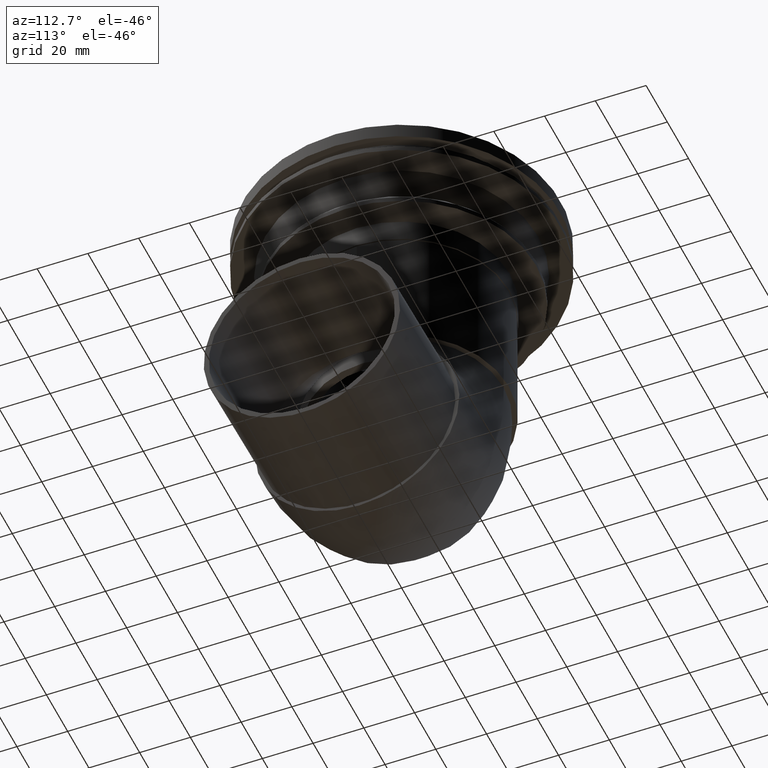
[diagram: clean part render]
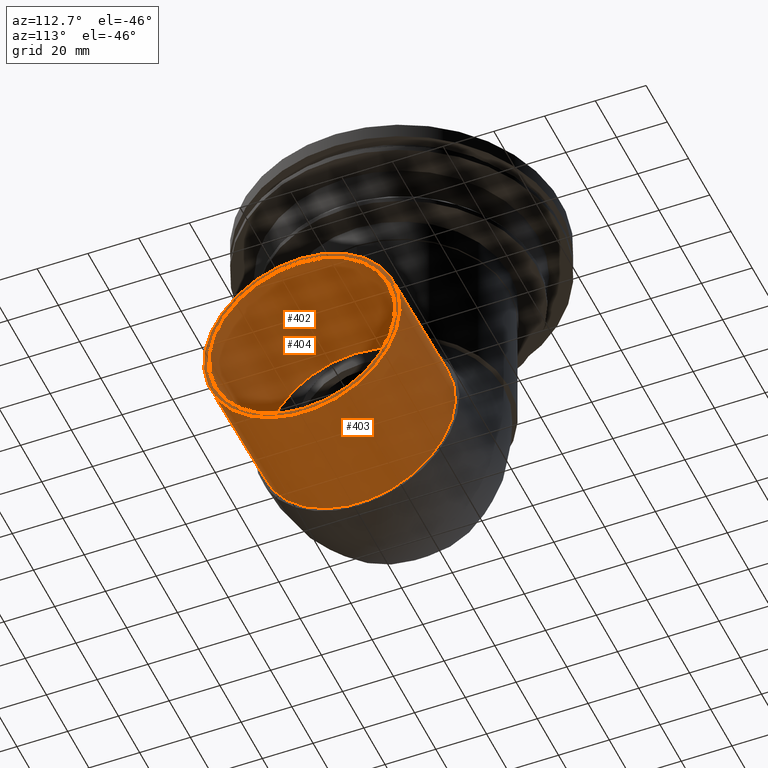
[diagram: same view with one multi-face feature highlighted, each face labeled with its STEP entity id]
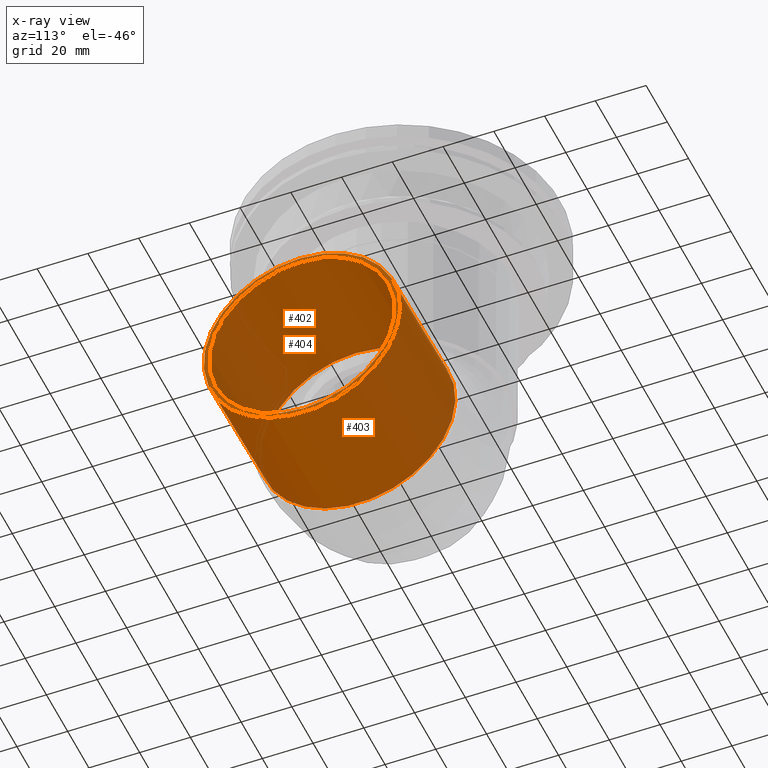
[diagram: x-ray of the same camera — body ghosted, the whole feature saturated]
A machine part, auxiliary view. The highlighted faces form ONE feature: a stepped (counterbored) hole: 2 coaxial cylindrical walls of radii 36.7 -> 38.7 mm joined by 1 annular planar shoulder face(s). The faces share edges in the B-rep.
The next image is the same camera in x-ray: the body ghosted and the whole hole feature saturated, so the bore chain is visible through the body.
Their STEP definitions:
[1] entity #403 (Cylinder):
#33=CYLINDRICAL_SURFACE('',#485,38.7);
#111=ORIENTED_EDGE('',*,*,#149,.T.);
#112=ORIENTED_EDGE('',*,*,#146,.F.);
#146=EDGE_CURVE('',#181,#181,#216,.T.);
#149=EDGE_CURVE('',#184,#184,#219,.T.);
#181=VERTEX_POINT('',#725);
#184=VERTEX_POINT('',#734);
#216=CIRCLE('',#480,38.7);
#219=CIRCLE('',#486,38.7);
#286=EDGE_LOOP('',(#111));
#287=EDGE_LOOP('',(#112));
#356=FACE_BOUND('',#286,.T.);
#357=FACE_BOUND('',#287,.T.);
#403=ADVANCED_FACE('',(#356,#357),#33,.T.);
#480=AXIS2_PLACEMENT_3D('',#724,#614,#615);
#485=AXIS2_PLACEMENT_3D('',#732,#624,#625);
#486=AXIS2_PLACEMENT_3D('',#733,#626,#627);
#614=DIRECTION('',(-0.999048221581858,0.,0.0436193873653364));
#615=DIRECTION('',(0.0436193873653364,0.,0.999048221581858));
#624=DIRECTION('',(-0.999048221581858,0.,0.0436193873653364));
#625=DIRECTION('',(0.0436193873653364,0.,0.999048221581858));
#626=DIRECTION('',(-0.999048221581858,0.,0.0436193873653364));
#627=DIRECTION('',(0.0436193873653364,0.,0.999048221581858));
#724=CARTESIAN_POINT('',(41.8238550927215,0.,-133.115971368612));
#725=CARTESIAN_POINT('',(43.51192538376,0.,-94.4528051933938));
#732=CARTESIAN_POINT('',(41.8238550927215,0.,-133.115971368612));
#733=CARTESIAN_POINT('',(94.0341151525894,0.,-135.395520552324));
#734=CARTESIAN_POINT('',(95.7221854436279,0.,-96.7323543771062));
[2] entity #402 (Cylinder):
#32=CYLINDRICAL_SURFACE('',#483,36.7);
#109=ORIENTED_EDGE('',*,*,#147,.T.);
#110=ORIENTED_EDGE('',*,*,#148,.F.);
#147=EDGE_CURVE('',#182,#182,#217,.T.);
#148=EDGE_CURVE('',#183,#183,#218,.T.);
#182=VERTEX_POINT('',#728);
#183=VERTEX_POINT('',#731);
#217=CIRCLE('',#482,36.7);
#218=CIRCLE('',#484,36.7);
#284=EDGE_LOOP('',(#109));
#285=EDGE_LOOP('',(#110));
#354=FACE_BOUND('',#284,.T.);
#355=FACE_BOUND('',#285,.T.);
#402=ADVANCED_FACE('',(#354,#355),#32,.F.);
#482=AXIS2_PLACEMENT_3D('',#727,#618,#619);
#483=AXIS2_PLACEMENT_3D('',#729,#620,#621);
#484=AXIS2_PLACEMENT_3D('',#730,#622,#623);
#618=DIRECTION('',(-0.999048221581858,0.,0.0436193873653364));
#619=DIRECTION('',(0.0436193873653364,0.,0.999048221581858));
#620=DIRECTION('',(-0.999048221581858,0.,0.0436193873653364));
#621=DIRECTION('',(0.0436193873653364,0.,0.999048221581858));
#622=DIRECTION('',(-0.999048221581858,0.,0.0436193873653364));
#623=DIRECTION('',(0.0436193873653364,0.,0.999048221581858));
#727=CARTESIAN_POINT('',(41.8238550927215,0.,-133.115971368612));
#728=CARTESIAN_POINT('',(43.4246866090293,0.,-96.4509016365575));
#729=CARTESIAN_POINT('',(41.8238550927215,0.,-133.115971368612));
#730=CARTESIAN_POINT('',(94.0341151525894,0.,-135.395520552324));
#731=CARTESIAN_POINT('',(95.6349466688972,0.,-98.73045082027));
[3] entity #404 (Plane):
#44=PLANE('',#487);
#113=ORIENTED_EDGE('',*,*,#148,.T.);
#114=ORIENTED_EDGE('',*,*,#149,.F.);
#148=EDGE_CURVE('',#183,#183,#218,.T.);
#149=EDGE_CURVE('',#184,#184,#219,.T.);
#183=VERTEX_POINT('',#731);
#184=VERTEX_POINT('',#734);
#218=CIRCLE('',#484,36.7);
#219=CIRCLE('',#486,38.7);
#288=EDGE_LOOP('',(#113));
#289=EDGE_LOOP('',(#114));
#358=FACE_BOUND('',#288,.T.);
#359=FACE_BOUND('',#289,.T.);
#404=ADVANCED_FACE('',(#358,#359),#44,.T.);
#484=AXIS2_PLACEMENT_3D('',#730,#622,#623);
#486=AXIS2_PLACEMENT_3D('',#733,#626,#627);
#487=AXIS2_PLACEMENT_3D('',#735,#628,#629);
#622=DIRECTION('',(-0.999048221581858,0.,0.0436193873653364));
#623=DIRECTION('',(0.0436193873653364,0.,0.999048221581858));
#626=DIRECTION('',(-0.999048221581858,0.,0.0436193873653364));
#627=DIRECTION('',(0.0436193873653364,0.,0.999048221581858));
#628=DIRECTION('',(0.999048221581858,0.,-0.0436193873653364));
#629=DIRECTION('',(-0.0436193873653364,0.,-0.999048221581858));
#730=CARTESIAN_POINT('',(94.0341151525894,0.,-135.395520552324));
#731=CARTESIAN_POINT('',(95.6349466688972,0.,-98.73045082027));
#733=CARTESIAN_POINT('',(94.0341151525894,0.,-135.395520552324));
#734=CARTESIAN_POINT('',(95.7221854436279,0.,-96.7323543771062));
#735=CARTESIAN_POINT('',(95.7221854436279,0.,-96.7323543771062));